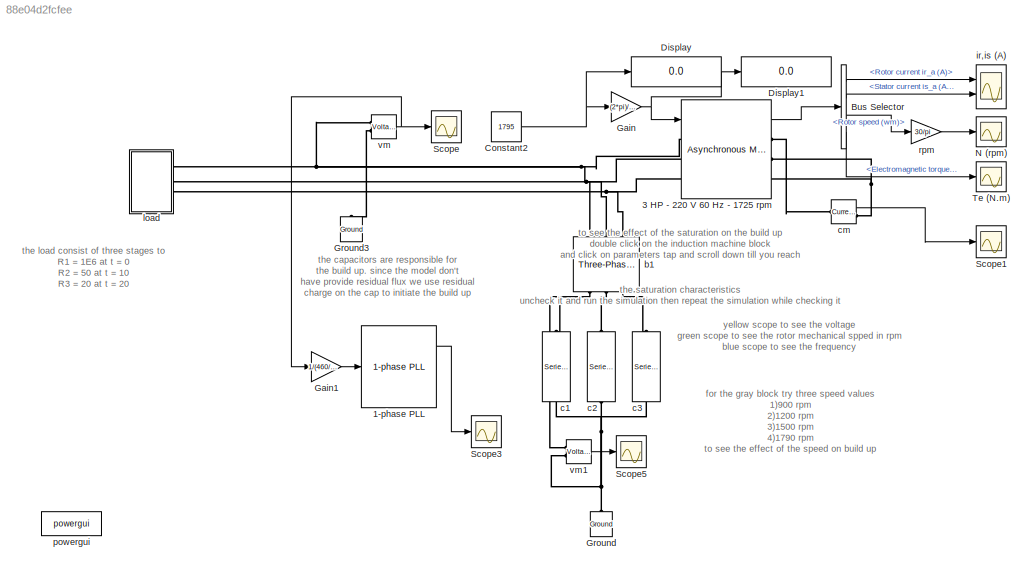
MODEL slx_88e04d2fcfee
KIND model
BLOCK [Reference] 1-phase PLL  REF=powerlib_extras/Control 
Blocks/1-phase
PLL
  AGC = on
  ParK = [ 180 3200 1 ]
  Par_Init = [0 60]
  Ports = [1, 3]
  SourceBlock = powerlib_extras/Control \nBlocks/1-phase\nPLL
  SourceType = 1-phase PLL
BLOCK [Reference] 3 HP - 220 V 60 Hz - 1725 rpm  REF=powerlib/Machines/Asynchronous Machine
SI Units
  AttributesFormatString = \n
  Cage1 = [ 0.022 0.226/377]
  Cage2 = [ 0.022 0.226/377]
  InitialConditions = [ 0.3,0   0,0,0   0,0,0 ]
  IterativeModel = Forward Euler
  Lm = 0.2037
  LoadFlowParameters = 0
  Mechanical = [0.02 0.005752 2]
  MechanicalLoad = Speed w
  NominalParameters = [3730 460 60]
  Pmec = 0
  PolePairs = 2
  Ports = [1, 1, 0, 0, 0, 3, 3]
  PresetModel = No
  ReferenceFrame = Synchronous
  Rotor = [1.083 0.005974]
  RotorType = Wound
  Saturation = [1.403593122, 2.781365428, 5.379336849, 7.268890987, 9.798006896, 14.86815601, 21.57428561, 30.29841135, 42 ; 230, 322, 414, 460, 506, 552, 598, 644, 690]
  ShowDetailedParameters = on
  SimulateSaturation = on
  SourceBlock = powerlib/Machines/Asynchronous Machine\nSI Units
  SourceType = Asynchronous Machine
  Stator = [1.115 0.005974]
  TsBlock = -1
  TsPowergui = 0
  Units = SI
BLOCK [BusSelector] Bus Selector
  OutputSignals = Rotor measurements.Rotor current ir_a (A),Stator measurements.Stator current is_a (A),Mechanical.Rotor speed (wm),Mechanical.Electromagnetic torque Te (N*m)
  Ports = [1, 4]
BLOCK [Constant] Constant2
  Value = 1795
BLOCK [Display] Display
  Decimation = 1
  Ports = [1]
BLOCK [Display] Display1
  Decimation = 1
  Ports = [1]
BLOCK [Gain] Gain
  Gain = (2*pi)/60
  OutDataTypeStr = Inherit: Inherit via internal rule
  ParamDataTypeStr = Inherit: Inherit via internal rule
  SaturateOnIntegerOverflow = off
BLOCK [Gain] Gain1
  Gain = 1/(460/sqrt(3))
  OutDataTypeStr = Inherit: Inherit via internal rule
  ParamDataTypeStr = Inherit: Inherit via internal rule
  SaturateOnIntegerOverflow = off
BLOCK [Reference] Ground  REF=powerlib/Elements/Ground
  LConnTagsString = a
  Ports = [0, 0, 0, 0, 0, 1]
  SourceBlock = powerlib/Elements/Ground
  SourceType = Ground
BLOCK [Reference] Ground3  REF=powerlib/Elements/Ground
  LConnTagsString = a
  Ports = [0, 0, 0, 0, 0, 1]
  SourceBlock = powerlib/Elements/Ground
  SourceType = Ground
BLOCK [Scope] N (rpm)
  DataFormat = Structure
  Floating = off
  LimitDataPoints = off
  NumInputPorts = 1
  Ports = [1]
  SampleTime = 0
  ShowLegends = off
  TimeRange = 1
  YMax = 1800
  YMin = -200
BLOCK [Scope] Scope
  DataFormat = StructureWithTime
  Floating = off
  LimitDataPoints = off
  NumInputPorts = 1
  Ports = [1]
  SampleTime = 0
  SaveName = ScopeData1
  ShowLegends = off
  YMax = -52.25
  YMin = -55.25
BLOCK [Scope] Scope1
  DataFormat = StructureWithTime
  Floating = off
  LimitDataPoints = off
  NumInputPorts = 1
  Ports = [1]
  SampleTime = 0
  SaveName = ScopeData2
  ShowLegends = off
BLOCK [Scope] Scope3
  DataFormat = StructureWithTime
  Floating = off
  LimitDataPoints = off
  NumInputPorts = 1
  Ports = [1]
  SampleTime = 0
  SaveName = ScopeData3
  ShowLegends = off
  YMax = 90
  YMin = -100
BLOCK [Scope] Scope5
  DataFormat = StructureWithTime
  Floating = off
  LimitDataPoints = off
  NumInputPorts = 1
  Ports = [1]
  SampleTime = 0
  SaveName = ScopeData6
  ShowLegends = off
  YMax = -8.75e-014
  YMin = -1.125e-013
BLOCK [Scope] Te (N.m)
  DataFormat = Structure
  Floating = off
  LimitDataPoints = off
  NumInputPorts = 1
  Ports = [1]
  SampleTime = 0
  ShowLegends = off
  YMax = 100
  YMin = -30
BLOCK [Reference] b1  REF=powerlib/Elements/Three-Phase Breaker
  BreakerResistance = 0.000001
  External = off
  InitialState = closed
  Measurements = None
  Ports = [0, 0, 0, 0, 0, 3, 3]
  SnubberCapacitance = inf
  SnubberResistance = 1e9
  SourceBlock = powerlib/Elements/Three-Phase Breaker
  SourceType = Three-Phase Breaker
  SwitchA = off
  SwitchB = off
  SwitchC = off
  SwitchTimes = [1]
BLOCK [Reference] c1  REF=powerlib/Elements/Series RLC Branch
  BranchType = C
  Capacitance = 1e-4
  Inductance = 1e-3
  InitialCurrent = 0
  InitialVoltage = 0
  LConnTagsString = __new0
  Measurements = None
  Ports = [0, 0, 0, 0, 0, 1, 1]
  RConnTagsString = __new0
  Resistance = 1
  SetiL0 = off
  Setx0 = on
  SourceBlock = powerlib/Elements/Series RLC Branch
  SourceType = Series RLC Branch
BLOCK [Reference] c2  REF=powerlib/Elements/Series RLC Branch
  BranchType = C
  Capacitance = 1e-4
  Inductance = 1e-3
  InitialCurrent = 0
  InitialVoltage = sin(-120)
  LConnTagsString = __new0
  Measurements = None
  Ports = [0, 0, 0, 0, 0, 1, 1]
  RConnTagsString = __new0
  Resistance = 1
  SetiL0 = off
  Setx0 = on
  SourceBlock = powerlib/Elements/Series RLC Branch
  SourceType = Series RLC Branch
BLOCK [Reference] c3  REF=powerlib/Elements/Series RLC Branch
  BranchType = C
  Capacitance = 1e-4
  Inductance = 1e-3
  InitialCurrent = 0
  InitialVoltage = sin(120)
  LConnTagsString = __new0
  Measurements = None
  Ports = [0, 0, 0, 0, 0, 1, 1]
  RConnTagsString = __new0
  Resistance = 1
  SetiL0 = off
  Setx0 = on
  SourceBlock = powerlib/Elements/Series RLC Branch
  SourceType = Series RLC Branch
BLOCK [Reference] cm  REF=powerlib/Measurements/Current Measurement
  OutputType = Complex
  PSBequivalent = 0
  PhasorSimulation = off
  Ports = [0, 1, 0, 0, 0, 1, 1]
  SourceBlock = powerlib/Measurements/Current Measurement
  SourceType = Current Measurement
BLOCK [Scope] ir,is (A)
  DataFormat = Structure
  Floating = off
  LimitDataPoints = off
  NumInputPorts = 2
  Ports = [2]
  SampleTime = 0
  ShowLegends = off
  YMax = 90~90
  YMin = -90~-90
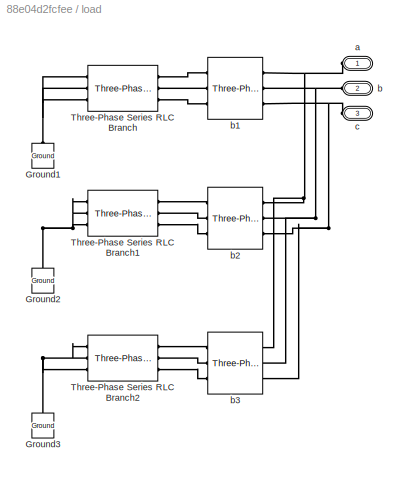
BLOCK [SubSystem] load
  FunctionWithSeparateData = off
  MaskHideContents = off
  MinAlgLoopOccurrences = off
  Opaque = off
  Ports = [0, 0, 0, 0, 0, 3]
  PropExecContextOutsideSubsystem = off
  RTWSystemCode = Auto
  RequestExecContextInheritance = off
BLOCK [Reference] load/Ground1  REF=powerlib/Elements/Ground
  LConnTagsString = a
  Ports = [0, 0, 0, 0, 0, 1]
  SourceBlock = powerlib/Elements/Ground
  SourceType = Ground
BLOCK [Reference] load/Ground2  REF=powerlib/Elements/Ground
  LConnTagsString = a
  Ports = [0, 0, 0, 0, 0, 1]
  SourceBlock = powerlib/Elements/Ground
  SourceType = Ground
BLOCK [Reference] load/Ground3  REF=powerlib/Elements/Ground
  LConnTagsString = a
  Ports = [0, 0, 0, 0, 0, 1]
  SourceBlock = powerlib/Elements/Ground
  SourceType = Ground
BLOCK [Reference] load/Three-Phase Series RLC Branch  REF=powerlib/Elements/Three-Phase
Series RLC Branch
  AttributesFormatString = \n
  BranchType = RL
  Capacitance = 1e-6
  Inductance = 1e-4
  LConnTagsString = A|B|C
  Measurements = None
  Ports = [0, 0, 0, 0, 0, 3, 3]
  RConnTagsString = A|B|C
  Resistance = 1e6
  SourceBlock = powerlib/Elements/Three-Phase\nSeries RLC Branch
  SourceType = Three-Phase Series RLC Branch
BLOCK [Reference] load/Three-Phase Series RLC Branch1  REF=powerlib/Elements/Three-Phase
Series RLC Branch
  AttributesFormatString = \n
  BranchType = RL
  Capacitance = 1e-6
  Inductance = 1e-4
  LConnTagsString = A|B|C
  Measurements = None
  Ports = [0, 0, 0, 0, 0, 3, 3]
  RConnTagsString = A|B|C
  Resistance = 50
  SourceBlock = powerlib/Elements/Three-Phase\nSeries RLC Branch
  SourceType = Three-Phase Series RLC Branch
BLOCK [Reference] load/Three-Phase Series RLC Branch2  REF=powerlib/Elements/Three-Phase
Series RLC Branch
  AttributesFormatString = \n
  BranchType = RL
  Capacitance = 1e-6
  Inductance = 1e-4
  LConnTagsString = A|B|C
  Measurements = None
  Ports = [0, 0, 0, 0, 0, 3, 3]
  RConnTagsString = A|B|C
  Resistance = 20
  SourceBlock = powerlib/Elements/Three-Phase\nSeries RLC Branch
  SourceType = Three-Phase Series RLC Branch
BLOCK [PMIOPort] load/a
  Port = 1
  Side = Left
BLOCK [PMIOPort] load/b
  Port = 2
  Side = Left
BLOCK [Reference] load/b1  REF=powerlib/Elements/Three-Phase Breaker
  BreakerResistance = 0.00001
  External = off
  InitialState = closed
  Measurements = None
  Ports = [0, 0, 0, 0, 0, 3, 3]
  SnubberCapacitance = inf
  SnubberResistance = 1e9
  SourceBlock = powerlib/Elements/Three-Phase Breaker
  SourceType = Three-Phase Breaker
  SwitchA = off
  SwitchB = off
  SwitchC = off
  SwitchTimes = [4/60  10/60]
BLOCK [Reference] load/b2  REF=powerlib/Elements/Three-Phase Breaker
  BreakerResistance = 0.00001
  External = off
  InitialState = open
  Measurements = None
  Ports = [0, 0, 0, 0, 0, 3, 3]
  SnubberCapacitance = inf
  SnubberResistance = 1e9
  SourceBlock = powerlib/Elements/Three-Phase Breaker
  SourceType = Three-Phase Breaker
  SwitchA = on
  SwitchB = on
  SwitchC = on
  SwitchTimes = [10]
BLOCK [Reference] load/b3  REF=powerlib/Elements/Three-Phase Breaker
  BreakerResistance = 0.00001
  External = off
  InitialState = open
  Measurements = None
  Ports = [0, 0, 0, 0, 0, 3, 3]
  SnubberCapacitance = inf
  SnubberResistance = 1e9
  SourceBlock = powerlib/Elements/Three-Phase Breaker
  SourceType = Three-Phase Breaker
  SwitchA = on
  SwitchB = on
  SwitchC = on
  SwitchTimes = [20]
BLOCK [PMIOPort] load/c
  Port = 3
  Side = Left
BLOCK [Reference] powergui  REF=powerlib/powergui
  DisableRonSwitches = off
  DisableSnubberDevices = off
  DisableVfSwitches = off
  DisplayEquations = off
  DisplayStyle = 1
  EnableUseOfTLC = off
  ErrMax = 1e-4
  Frange = [0:2:500]
  FreqAxis = off
  FunctionMessages = off
  HookPort = off
  Interpol = off
  Iterations = 50
  MaxFrequency = 1000
  Pbase = 100e6
  Ports = []
  ResistiveCurrentMeasurement = off
  RestoreLinks = warning
  RmsSteady = 1
  SPID = off
  SampleTime = 0
  ShowGrid = off
  SolverType = Tustin
  SourceBlock = powerlib/powergui
  SourceType = PSB option menu block
  StartTime = 0.0
  SwTol = 0
  Ts = 0
  UnitsV = kV
  UnitsW = MW
  UserDataPersistent = on
  Xlog = on
  Ylog = off
  ZoomFFT = on
  cycles = 1
  display = off
  echomessages = off
  frequency = 60
  frequencyindice = 60
  frequencyindicesteady = 1
  fundamental = 60
  methode = off
  save = off
  variable = ZData
  x0status = blocks
BLOCK [Gain] rpm
  Gain = 30/pi
BLOCK [Reference] vm  REF=powerlib/Measurements/Voltage Measurement
  OutputType = Complex
  PSBequivalent = 0
  PhasorSimulation = off
  Ports = [0, 1, 0, 0, 0, 2]
  SourceBlock = powerlib/Measurements/Voltage Measurement
  SourceType = Voltage Measurement
BLOCK [Reference] vm1  REF=powerlib/Measurements/Voltage Measurement
  OutputType = Complex
  PSBequivalent = 0
  PhasorSimulation = off
  Ports = [0, 1, 0, 0, 0, 2]
  SourceBlock = powerlib/Measurements/Voltage Measurement
  SourceType = Voltage Measurement
ANNOTATION (root): for the gray block try three speed values 1)900 rpm 2)1200 rpm 3)1500 rpm 4)1790 rpm to see the effect of the speed on build up
ANNOTATION (root): the capacitors are responsible for the build up. since the model don't have provide residual flux we use residual charge on the cap to initiate the build up
ANNOTATION (root): the load consist of three stages to R1 = 1E6 at t = 0 R2 = 50 at t = 10 R3 = 20 at t = 20
ANNOTATION (root): to see the effect of the saturation on the build up double click on the induction machine block and click on parameters tap and scroll down till you reach the saturation characteristics uncheck it and run the simulation then repeat the simulation while checking it
ANNOTATION (root): yellow scope to see the voltage green scope to see the rotor mechanical spped in rpm blue scope to see the frequency
LINE 1-phase PLL:1 -> Scope3:1
LINE 3 HP - 220 V 60 Hz - 1725 rpm:1 -> Bus Selector:1
LINE Bus Selector:1 -> ir,is (A):1
LINE Bus Selector:2 -> ir,is (A):2
LINE Bus Selector:3 -> rpm:1
LINE Bus Selector:4 -> Te (N.m):1
NET Constant2:1 -> Display:1, Gain:1
LINE Gain1:1 -> 1-phase PLL:1
NET Gain:1 -> 3 HP - 220 V 60 Hz - 1725 rpm:1, Display1:1
LINE cm:1 -> Scope1:1
LINE rpm:1 -> N (rpm):1
LINE vm1:1 -> Scope5:1
NET vm:1 -> Gain1:1, Scope:1
PNET net1: 3 HP - 220 V 60 Hz - 1725 rpm:LConn1 -- b1:LConn1 -- load:LConn1 -- vm:LConn1
PNET net2: 3 HP - 220 V 60 Hz - 1725 rpm:LConn2 -- b1:LConn2 -- load:LConn2
PNET net3: 3 HP - 220 V 60 Hz - 1725 rpm:LConn3 -- b1:LConn3 -- load:LConn3
PLINE 3 HP - 220 V 60 Hz - 1725 rpm:RConn1 -- cm:LConn1
PNET net4: 3 HP - 220 V 60 Hz - 1725 rpm:RConn2 -- 3 HP - 220 V 60 Hz - 1725 rpm:RConn3 -- cm:RConn1
PLINE Ground3:LConn1 -- vm:LConn2
PNET net5: Ground:LConn1 -- c1:RConn1 -- c2:RConn1 -- c3:RConn1 -- vm1:LConn2
PNET net6: b1:RConn1 -- c1:LConn1 -- vm1:LConn1
PLINE b1:RConn2 -- c2:LConn1
PLINE b1:RConn3 -- c3:LConn1
PNET net7: load/Ground1:LConn1 -- load/Three-Phase Series RLC Branch:LConn1 -- load/Three-Phase Series RLC Branch:LConn2 -- load/Three-Phase Series RLC Branch:LConn3
PNET net8: load/Ground2:LConn1 -- load/Three-Phase Series RLC Branch1:LConn1 -- load/Three-Phase Series RLC Branch1:LConn2 -- load/Three-Phase Series RLC Branch1:LConn3
PNET net9: load/Ground3:LConn1 -- load/Three-Phase Series RLC Branch2:LConn1 -- load/Three-Phase Series RLC Branch2:LConn2 -- load/Three-Phase Series RLC Branch2:LConn3
PLINE load/Three-Phase Series RLC Branch1:RConn1 -- load/b2:LConn1
PLINE load/Three-Phase Series RLC Branch1:RConn2 -- load/b2:LConn2
PLINE load/Three-Phase Series RLC Branch1:RConn3 -- load/b2:LConn3
PLINE load/Three-Phase Series RLC Branch2:RConn1 -- load/b3:LConn1
PLINE load/Three-Phase Series RLC Branch2:RConn2 -- load/b3:LConn2
PLINE load/Three-Phase Series RLC Branch2:RConn3 -- load/b3:LConn3
PLINE load/Three-Phase Series RLC Branch:RConn1 -- load/b1:LConn1
PLINE load/Three-Phase Series RLC Branch:RConn2 -- load/b1:LConn2
PLINE load/Three-Phase Series RLC Branch:RConn3 -- load/b1:LConn3
PNET net10: load/a:RConn1 -- load/b1:RConn1 -- load/b2:RConn1 -- load/b3:RConn1
PNET net11: load/b1:RConn2 -- load/b2:RConn2 -- load/b3:RConn2 -- load/b:RConn1
PNET net12: load/b1:RConn3 -- load/b2:RConn3 -- load/b3:RConn3 -- load/c:RConn1
note: NET lines group one-source signal fan-out (src -> all destinations, sorted); 1:1 wires keep LINE; PNET lines group multi-terminal physical nets as a canonical sorted terminal list (undirected conserving connections); 2-terminal nets keep the pairwise PLINE form
